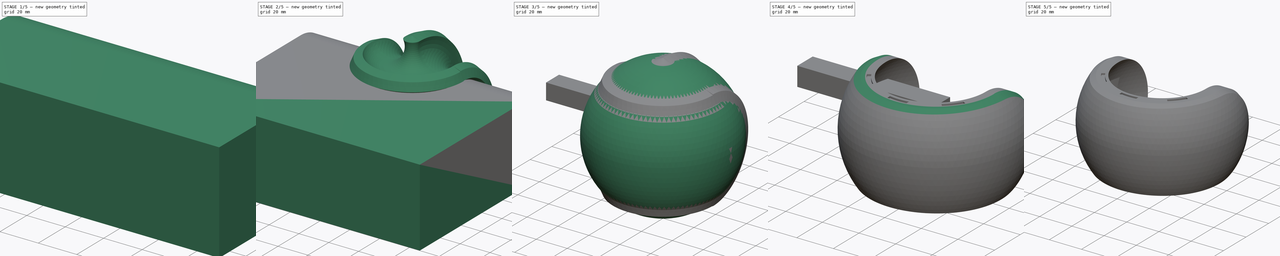
[diagram: build sequence overview — one tinted view per stage of 5, left to right]
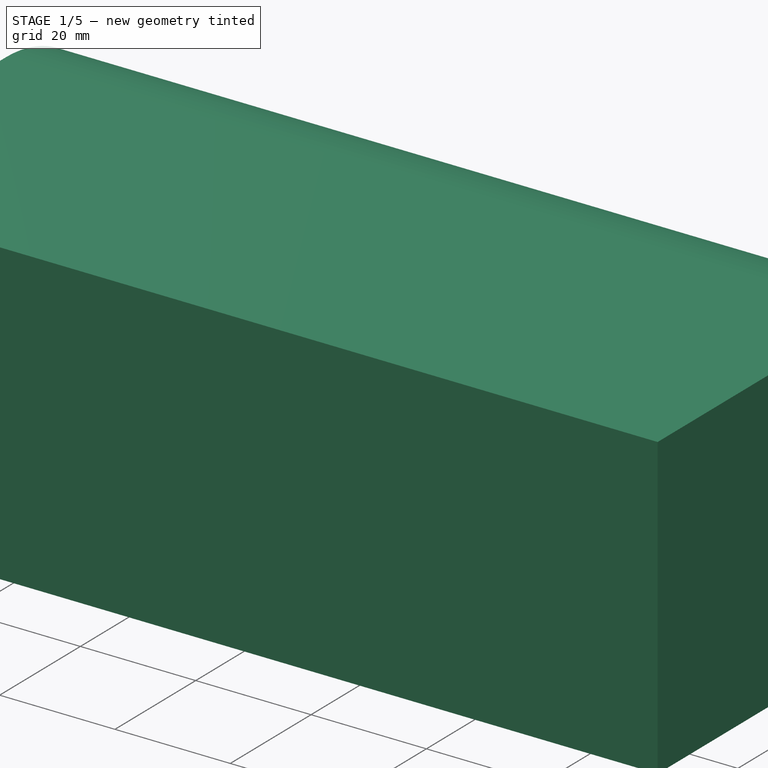
[diagram: stage 1 of 5 — iso view after this stage's code; geometry added in this stage tinted green]
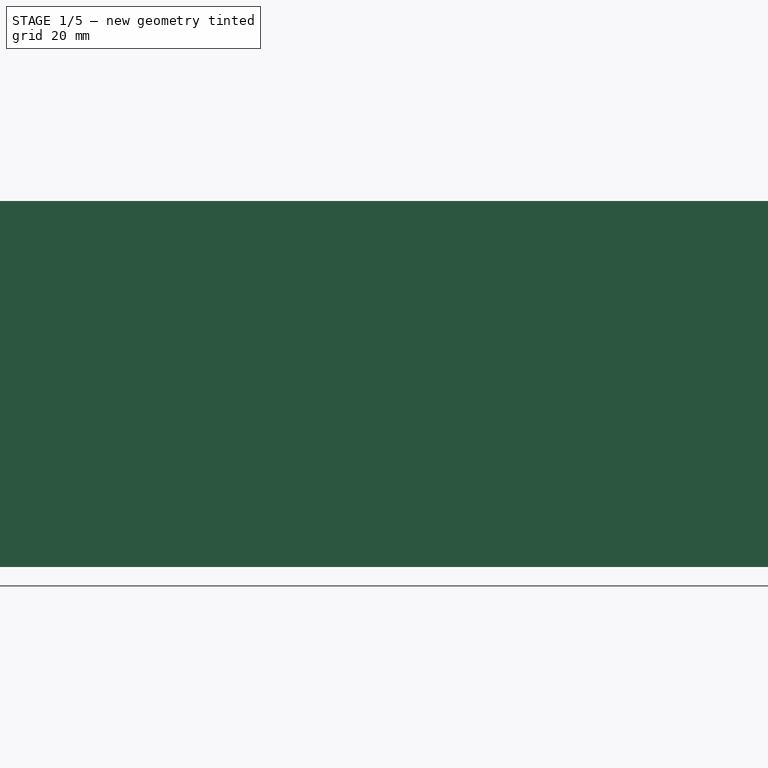
[diagram: stage 1 of 5 — front view after this stage's code; geometry added in this stage tinted green]
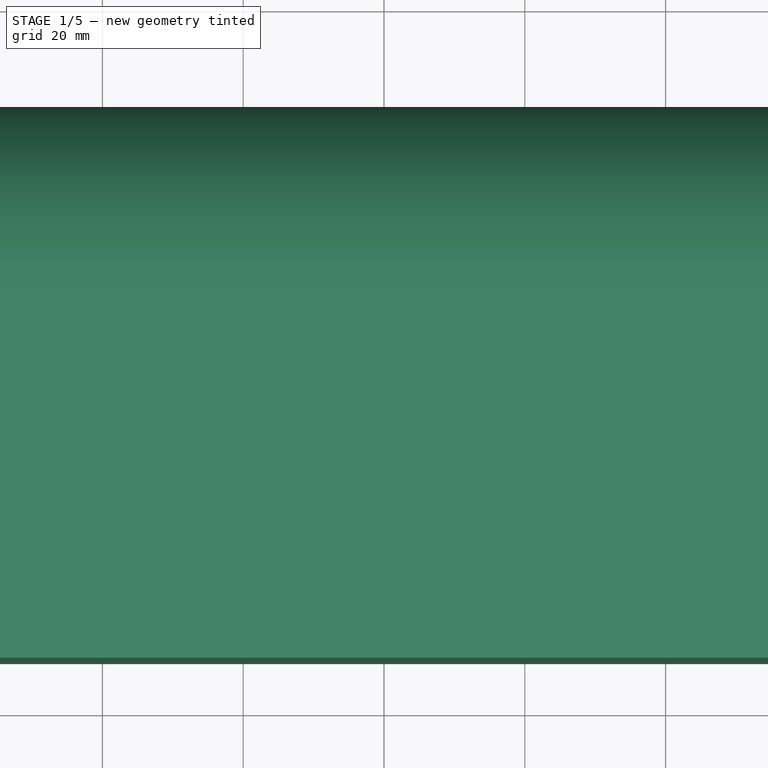
[diagram: stage 1 of 5 — top view after this stage's code; geometry added in this stage tinted green]
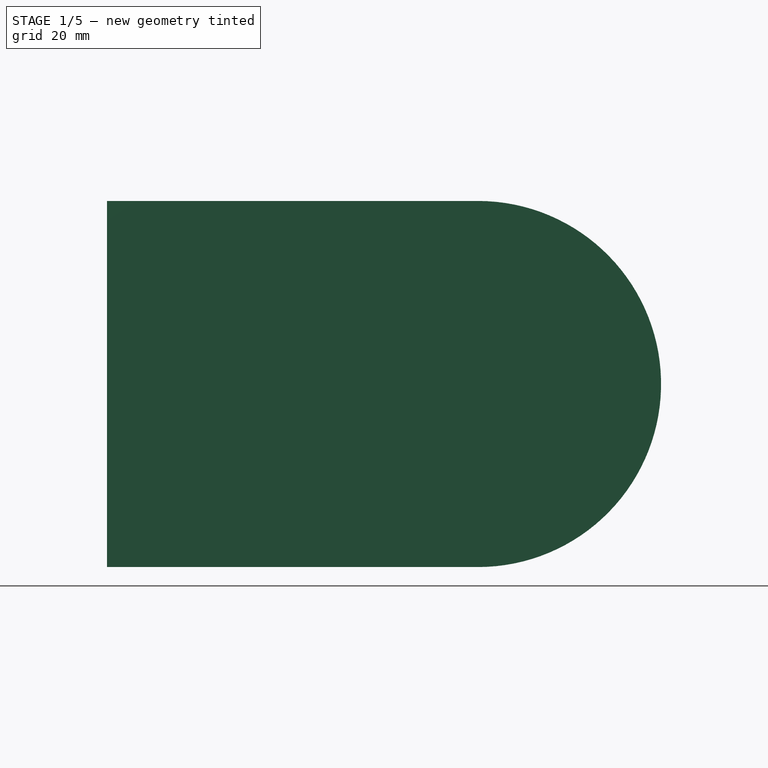
[diagram: stage 1 of 5 — right view after this stage's code; geometry added in this stage tinted green]
FCSTD DOCUMENT  (FreeCAD 0.16R6712 (Git))
Label: mouseesf2
License: All rights reserved
LicenseURL: http://en.wikipedia.org/wiki/All_rights_reserved
objects: Sketcher::SketchObject×12, PartDesign::Pad×9, Part::Cut×4, PartDesign::Revolution×3, Part::MultiFuse×3, Part::MultiCommon×1, PartDesign::Chamfer×1
note: 45 computed .brp shape members not serialized (recipe doc carries the construction recipe); baked Part::Feature solids carry a one-line shape summary decoded from their .brp

FEATURE [Sketcher::SketchObject] Sketch002
  Placement = pos=(0,0,0) rot=(0.57735,0.57735,0.57735;2.0944rad)
  sketch-geometry (4):
    g0: LineSegment StartX=-0.0102916 StartY=25.6633 StartZ=0 EndX=-52.71 EndY=25.6633 EndZ=0
    g1: LineSegment StartX=-0.0103038 StartY=-26.3367 StartZ=0 EndX=-52.71 EndY=-26.3367 EndZ=0
    g2: LineSegment StartX=-52.71 StartY=25.6633 StartZ=0 EndX=-52.71 EndY=-26.3367 EndZ=0
    g3: ArcOfCircle CenterX=-0.0103043 CenterY=-0.33667 CenterZ=0 NormalX=0 NormalY=0 NormalZ=1 Radius=26 StartAngle=4.71239 EndAngle=7.85398
  constraints (10):
    c: Horizontal(g0)
    c: Horizontal(g1)
    c: Coincident(g2,g0)
    c: Coincident(g2,g1)
    c: Vertical(g2)
    c: Coincident(g3,g0)
    c: Coincident(g3,g1)
    c: Tangent(g3,g1)
    c: Tangent(g3,g0)
    c: Radius(g3) = 26
FEATURE [PartDesign::Pad] Pad
  Length = 150
  Length2 = 100
  Midplane = true
  Placement = pos=(0,0,0) rot=(0.57735,0.57735,0.57735;2.0944rad)
  Sketch = -> Sketch002
  Type = 0
FEATURE [Sketcher::SketchObject] Sketch008
  Placement = pos=(0,0,0) rot=(0.57735,0.57735,0.57735;2.0944rad)
  sketch-geometry (4):
    g0: LineSegment StartX=0 StartY=0.5 StartZ=0 EndX=10 EndY=0.5 EndZ=0
    g1: LineSegment StartX=10 StartY=0.5 StartZ=0 EndX=10 EndY=-0.5 EndZ=0
    g2: LineSegment StartX=10 StartY=-0.5 StartZ=0 EndX=0 EndY=-0.5 EndZ=0
    g3: LineSegment StartX=0 StartY=-0.5 StartZ=0 EndX=0 EndY=0.5 EndZ=0
  constraints (12):
    c: Coincident(g0,g1)
    c: Coincident(g1,g2)
    c: Coincident(g2,g3)
    c: Coincident(g3,g0)
    c: Horizontal(g0)
    c: Horizontal(g2)
    c: Vertical(g1)
    c: Vertical(g3)
    c: DistanceY(g2,g0) = 1
    c: DistanceX(g0,g0) = 10
    c: Symmetric(g0,g1,g-1)
    c: PointOnObject(g0,g-2)
FEATURE [PartDesign::Pad] Pad005
  Length = 83
  Length2 = 100
  Midplane = true
  Placement = pos=(0,0,0) rot=(0.57735,0.57735,0.57735;2.0944rad)
  Sketch = -> Sketch008
  Type = 0
FEATURE [Sketcher::SketchObject] Sketch011
  Placement = pos=(0,0,0) rot=(0.57735,0.57735,0.57735;2.0944rad)
  sketch-geometry (4):
    g0: LineSegment StartX=-1 StartY=11.4 StartZ=0 EndX=11 EndY=11.4 EndZ=0
    g1: LineSegment StartX=11 StartY=11.4 StartZ=0 EndX=11 EndY=1 EndZ=0
    g2: LineSegment StartX=11 StartY=1 StartZ=0 EndX=-1 EndY=1 EndZ=0
    g3: LineSegment StartX=-1 StartY=1 StartZ=0 EndX=-1 EndY=11.4 EndZ=0
  constraints (12):
    c: Coincident(g0,g1)
    c: Coincident(g1,g2)
    c: Coincident(g2,g3)
    c: Coincident(g3,g0)
    c: Horizontal(g0)
    c: Horizontal(g2)
    c: Vertical(g1)
    c: Vertical(g3)
    c: DistanceX(g0,g0) = 12
    c: DistanceY(g1,g1) = 10.4
    c: DistanceY(g-1,g1) = 1
    c: DistanceX(g0,g-1) = 1
FEATURE [PartDesign::Pad] Pad007
  Length = 75
  Length2 = 100
  Placement = pos=(0,0,0) rot=(0.57735,0.57735,0.57735;2.0944rad)
  Reversed = true
  Sketch = -> Sketch011
  Type = 0
FEATURE [Sketcher::SketchObject] Sketch012
  sketch-geometry (8):
    g0: LineSegment StartX=-16.9661 StartY=13.8429 StartZ=0 EndX=17.0339 EndY=13.8429 EndZ=0
    g1: LineSegment StartX=17.0339 StartY=13.8429 StartZ=0 EndX=17.0339 EndY=-5.15711 EndZ=0
    g2: LineSegment StartX=17.0339 StartY=-5.15711 StartZ=0 EndX=-16.9661 EndY=-5.15711 EndZ=0
    g3: LineSegment StartX=-16.9661 StartY=-5.15711 StartZ=0 EndX=-16.9661 EndY=13.8429 EndZ=0
    g4: LineSegment StartX=-11.2366 StartY=-10.6546 StartZ=0 EndX=9.76342 EndY=-10.6546 EndZ=0
    g5: LineSegment StartX=9.76342 StartY=-10.6546 StartZ=0 EndX=9.76342 EndY=-28.6546 EndZ=0
    g6: LineSegment StartX=9.76342 StartY=-28.6546 StartZ=0 EndX=-11.2366 EndY=-28.6546 EndZ=0
    g7: LineSegment StartX=-11.2366 StartY=-28.6546 StartZ=0 EndX=-11.2366 EndY=-10.6546 EndZ=0
  constraints (20):
    c: Coincident(g0,g1)
    c: Coincident(g1,g2)
    c: Coincident(g2,g3)
    c: Coincident(g3,g0)
    c: Horizontal(g0)
    c: Horizontal(g2)
    c: Vertical(g1)
    c: Vertical(g3)
    c: DistanceX(g2,g2) = 34
    c: DistanceY(g3,g3) = 19
    c: Coincident(g4,g5)
    c: Coincident(g5,g6)
    c: Coincident(g6,g7)
    c: Coincident(g7,g4)
    c: Horizontal(g4)
    c: Horizontal(g6)
    c: Vertical(g5)
    c: Vertical(g7)
    c: DistanceX(g4,g4) = 21
    c: DistanceY(g5,g5) = 18
FEATURE [PartDesign::Pad] Pad008
  Length = 2
  Length2 = 100
  Midplane = true
  Sketch = -> Sketch012
  Type = 0
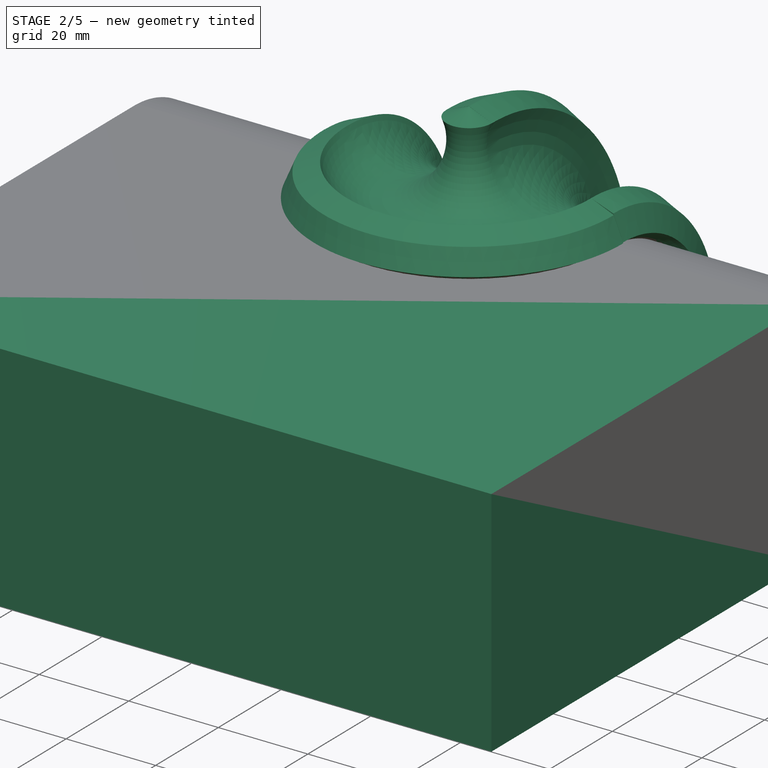
[diagram: stage 2 of 5 — iso view after this stage's code; geometry added in this stage tinted green]
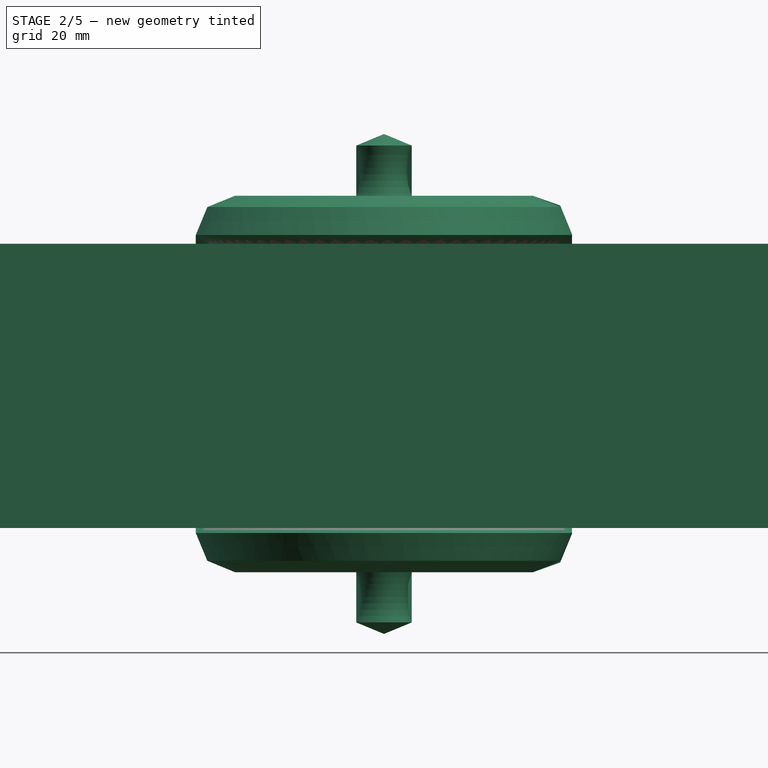
[diagram: stage 2 of 5 — front view after this stage's code; geometry added in this stage tinted green]
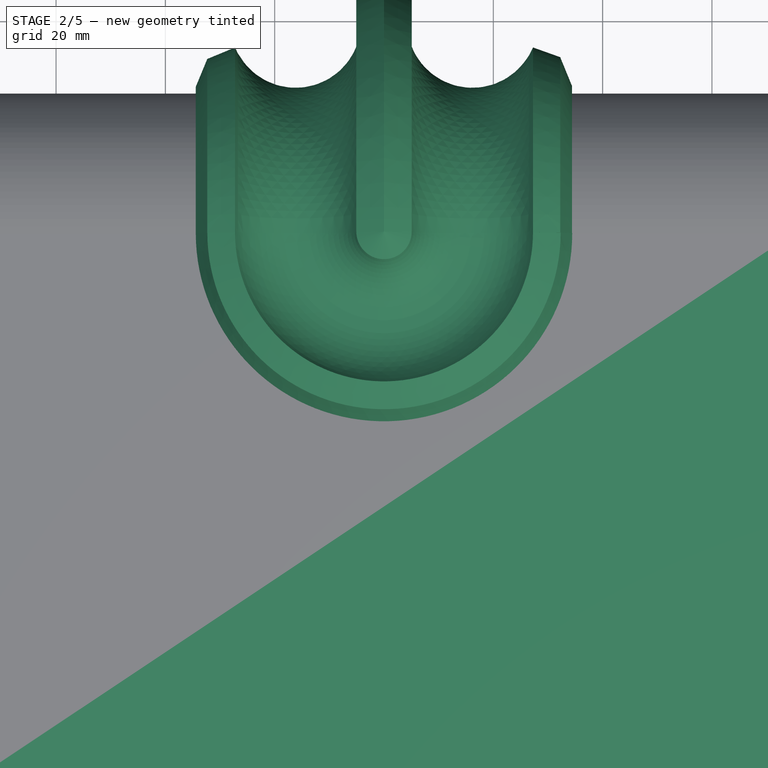
[diagram: stage 2 of 5 — top view after this stage's code; geometry added in this stage tinted green]
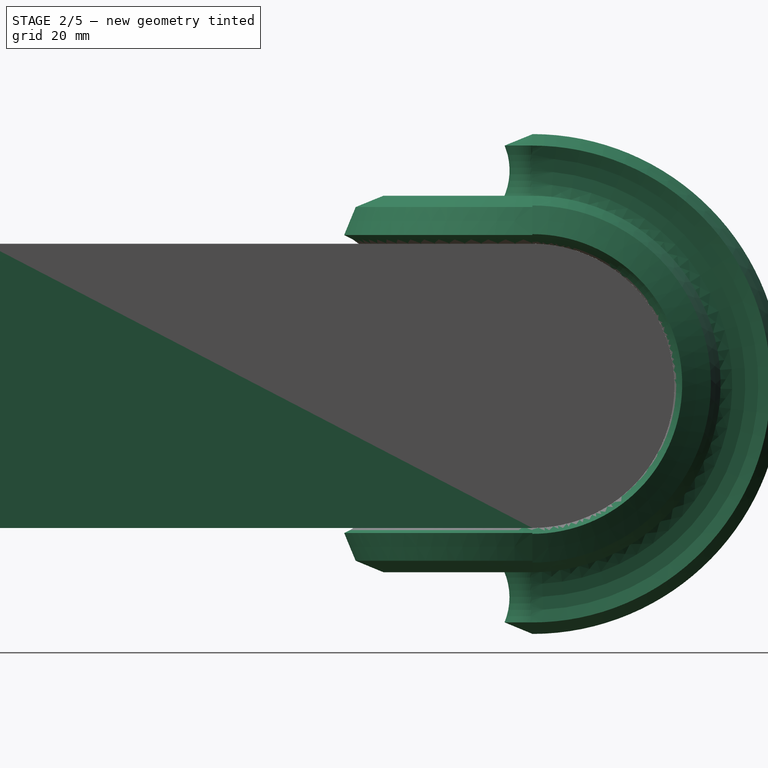
[diagram: stage 2 of 5 — right view after this stage's code; geometry added in this stage tinted green]
FEATURE [Sketcher::SketchObject] Sketch004
  Placement = pos=(0,0,0) rot=(1,0,0;1.5708rad)
  sketch-geometry (13):
    g0: LineSegment StartX=-45.7299 StartY=-9.97052e-05 StartZ=0 EndX=-43.625 EndY=-5.08134 EndZ=0
    g1: LineSegment StartX=-32.3357 StartY=-32.3328 StartZ=0 EndX=-27.2478 EndY=-34.4379 EndZ=0
    g2: ArcOfCircle CenterX=-39.0327 CenterY=16.1679 CenterZ=0 NormalX=0 NormalY=0 NormalZ=1 Radius=12 StartAngle=4.31969 EndAngle=7.46128
    g3: ArcOfCircle CenterX=-39.0328 CenterY=-16.1678 CenterZ=0 NormalX=0 NormalY=0 NormalZ=1 Radius=11.9999 StartAngle=5.10517 EndAngle=8.24668
    g4: ArcOfCircle CenterX=-16.1726 CenterY=-39.0323 CenterZ=0 NormalX=0 NormalY=0 NormalZ=1 Radius=11.9903 StartAngle=5.89182 EndAngle=9.03154
    g5: LineSegment StartX=0 StartY=45.6969 StartZ=0 EndX=-5.06214 EndY=43.6285 EndZ=0
    g6: LineSegment StartX=-32.3229 StartY=32.3788 StartZ=0 EndX=-27.2599 EndY=34.4451 EndZ=0
    g7: LineSegment StartX=-34.4405 StartY=27.2544 StartZ=0 EndX=-32.3229 EndY=32.3788 EndZ=0
    g8: LineSegment StartX=-43.6249 StartY=5.08134 StartZ=0 EndX=-45.7299 EndY=-9.97052e-05 EndZ=0
    g9: LineSegment StartX=-34.4397 StartY=-27.2539 StartZ=0 EndX=-32.3357 EndY=-32.3328 EndZ=0
    g10: LineSegment StartX=-5.0889 StartY=-43.6061 StartZ=0 EndX=0 EndY=-45.7116 EndZ=0
    g11: LineSegment StartX=0 StartY=45.6969 StartZ=0 EndX=0 EndY=-45.7116 EndZ=0
    g12: ArcOfCircle CenterX=-16.1811 CenterY=39.0854 CenterZ=0 NormalX=0 NormalY=0 NormalZ=1 Radius=12.0113 StartAngle=3.53823 EndAngle=6.67108
  constraints (24):
    c: Coincident(g7,g2)
    c: Coincident(g7,g6)
    c: Coincident(g8,g2)
    c: Coincident(g8,g0)
    c: PointOnObject(g0,g3)
    c: PointOnObject(g9,g3)
    c: Tangent(g0,g9)
    c: PointOnObject(g1,g4)
    c: PointOnObject(g10,g4)
    c: Tangent(g1,g10)
    c: Coincident(g0,g3)
    c: Coincident(g3,g9)
    c: Coincident(g1,g9)
    c: Coincident(g1,g4)
    c: Coincident(g4,g10)
    c: Coincident(g11,g5)
    c: Coincident(g11,g10)
    c: Vertical(g11)
    c: Coincident(g12,g6)
    c: Coincident(g12,g5)
    c: Equal(g6,g5)
    c: Radius(g2) = 12
    c: PointOnObject(g5,g-2)
    c: Perpendicular(g12,g5)
FEATURE [Sketcher::SketchObject] Sketch001
  Placement = pos=(0,0,0) rot=(0.57735,0.57735,-0.57735;2.0944rad)
  sketch-geometry (13):
    g0: LineSegment StartX=-45.7299 StartY=-9.97052e-05 StartZ=0 EndX=-43.625 EndY=-5.08134 EndZ=0
    g1: LineSegment StartX=-32.3357 StartY=-32.3328 StartZ=0 EndX=-27.2478 EndY=-34.4379 EndZ=0
    g2: ArcOfCircle CenterX=-39.0327 CenterY=16.1679 CenterZ=0 NormalX=0 NormalY=0 NormalZ=1 Radius=12 StartAngle=4.31969 EndAngle=7.46128
    g3: ArcOfCircle CenterX=-39.0328 CenterY=-16.1678 CenterZ=0 NormalX=0 NormalY=0 NormalZ=1 Radius=11.9999 StartAngle=5.10517 EndAngle=8.24668
    g4: ArcOfCircle CenterX=-16.1726 CenterY=-39.0323 CenterZ=0 NormalX=0 NormalY=0 NormalZ=1 Radius=11.9903 StartAngle=5.89182 EndAngle=9.03154
    g5: LineSegment StartX=0 StartY=45.7139 StartZ=0 EndX=-5.28125 EndY=43.6461 EndZ=0
    g6: LineSegment StartX=-32.6654 StartY=32.2385 StartZ=0 EndX=-27.4173 EndY=34.389 EndZ=0
    g7: LineSegment StartX=-34.4405 StartY=27.2544 StartZ=0 EndX=-32.6654 EndY=32.2385 EndZ=0
    g8: LineSegment StartX=-43.6249 StartY=5.08134 StartZ=0 EndX=-45.7299 EndY=-9.97052e-05 EndZ=0
    g9: LineSegment StartX=-34.4397 StartY=-27.2539 StartZ=0 EndX=-32.3357 EndY=-32.3328 EndZ=0
    g10: LineSegment StartX=-5.0889 StartY=-43.6061 StartZ=0 EndX=0 EndY=-45.7116 EndZ=0
    g11: LineSegment StartX=0 StartY=45.7139 StartZ=0 EndX=0 EndY=-45.7116 EndZ=0
    g12: ArcOfCircle CenterX=-16.4553 CenterY=39.2712 CenterZ=0 NormalX=0 NormalY=0 NormalZ=1 Radius=12 StartAngle=3.56059 EndAngle=6.65637
  constraints (25):
    c: Coincident(g7,g2)
    c: Coincident(g7,g6)
    c: Coincident(g8,g2)
    c: Coincident(g8,g0)
    c: PointOnObject(g0,g3)
    c: PointOnObject(g9,g3)
    c: Tangent(g0,g9)
    c: PointOnObject(g1,g4)
    c: PointOnObject(g10,g4)
    c: Tangent(g1,g10)
    c: Coincident(g0,g3)
    c: Coincident(g3,g9)
    c: Coincident(g1,g9)
    c: Coincident(g1,g4)
    c: Coincident(g4,g10)
    c: Coincident(g11,g5)
    c: Coincident(g11,g10)
    c: Vertical(g11)
    c: Coincident(g12,g6)
    c: Coincident(g12,g5)
    c: Equal(g6,g5)
    c: Radius(g12) = 12
    c: Radius(g2) = 12
    c: PointOnObject(g5,g-2)
    c: Perpendicular(g12,g5)
FEATURE [PartDesign::Revolution] Revolution001
  Angle = 180
  Axis = (1,0,0)
  Base = (0,0,0)
  Placement = pos=(0,0,0) rot=(0.57735,0.57735,-0.57735;2.0944rad)
  ReferenceAxis = -> Sketch001 [V_Axis]
  Reversed = true
  Sketch = -> Sketch001
FEATURE [Sketcher::SketchObject] Sketch005
  Placement = pos=(0,0,0) rot=(0.57735,0.57735,0.57735;2.0944rad)
  sketch-geometry (4):
    g0: LineSegment StartX=-0.0102979 StartY=25.6633 StartZ=0 EndX=-100 EndY=25.6633 EndZ=0
    g1: LineSegment StartX=-0.0103041 StartY=-26.3367 StartZ=0 EndX=-100 EndY=-26.3367 EndZ=0
    g2: LineSegment StartX=-100 StartY=25.6633 StartZ=0 EndX=-100 EndY=-26.3367 EndZ=0
    g3: ArcOfCircle CenterX=-0.0103043 CenterY=-0.33667 CenterZ=0 NormalX=0 NormalY=0 NormalZ=1 Radius=26 StartAngle=4.71239 EndAngle=7.85398
  constraints (11):
    c: Horizontal(g0)
    c: Horizontal(g1)
    c: Coincident(g2,g0)
    c: Coincident(g2,g1)
    c: Vertical(g2)
    c: Coincident(g3,g0)
    c: Coincident(g3,g1)
    c: Tangent(g3,g1)
    c: Tangent(g3,g0)
    c: Radius(g3) = 26
    c: DistanceX(g0,g-1) = 100
FEATURE [PartDesign::Pad] Pad002
  Length = 150
  Length2 = 100
  Midplane = true
  Placement = pos=(0,0,0) rot=(0.57735,0.57735,0.57735;2.0944rad)
  Sketch = -> Sketch005
  Type = 0
FEATURE [PartDesign::Revolution] Revolution002
  Angle = 180
  Axis = (0,0,1)
  Base = (0,0,0)
  Placement = pos=(0,0,0) rot=(1,0,0;1.5708rad)
  ReferenceAxis = -> Sketch004 [V_Axis]
  Sketch = -> Sketch004
FEATURE [Part::Cut] Cut001
  Base = -> Revolution001
  Tool = -> Pad
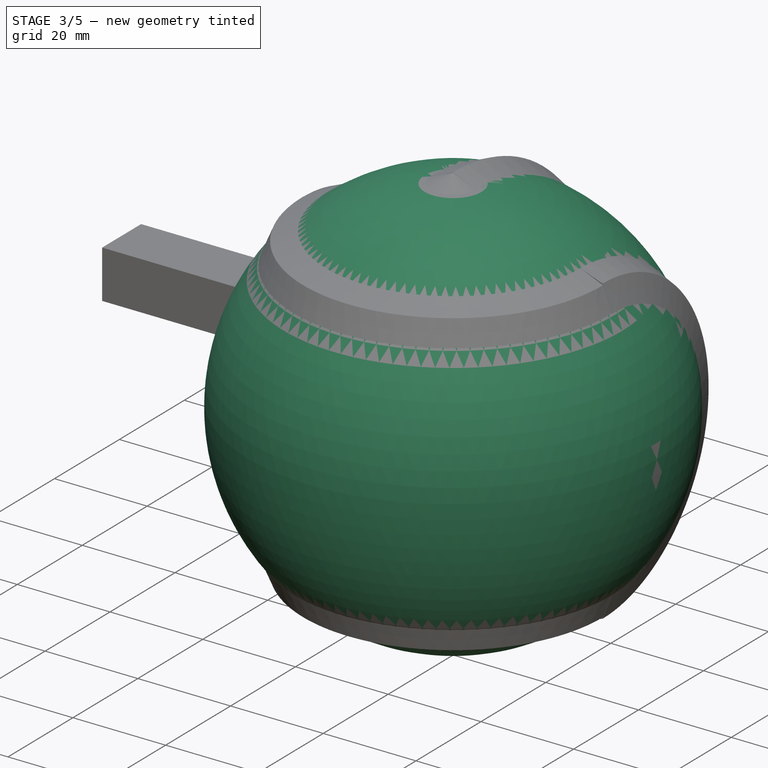
[diagram: stage 3 of 5 — iso view after this stage's code; geometry added in this stage tinted green]
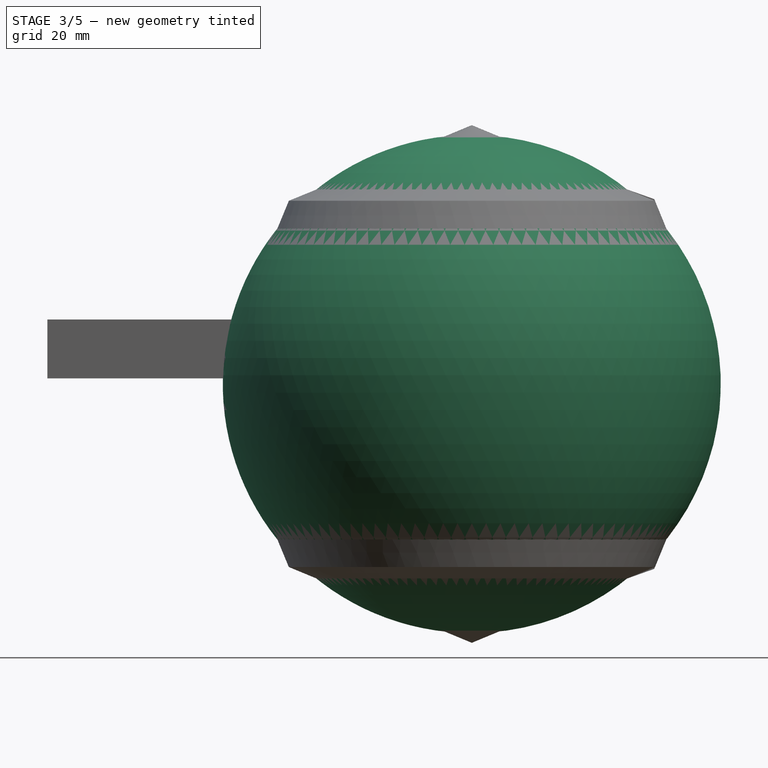
[diagram: stage 3 of 5 — front view after this stage's code; geometry added in this stage tinted green]
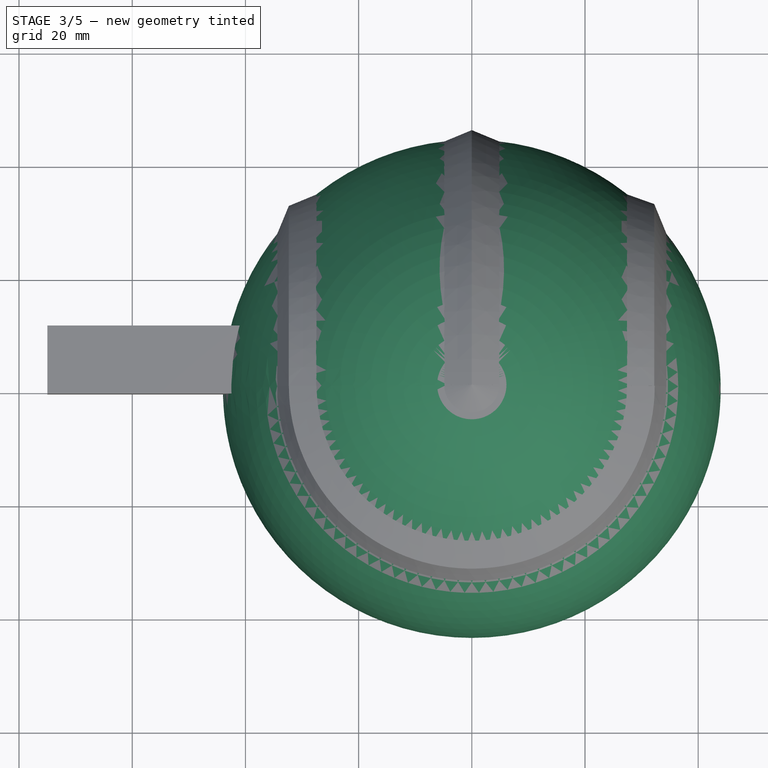
[diagram: stage 3 of 5 — top view after this stage's code; geometry added in this stage tinted green]
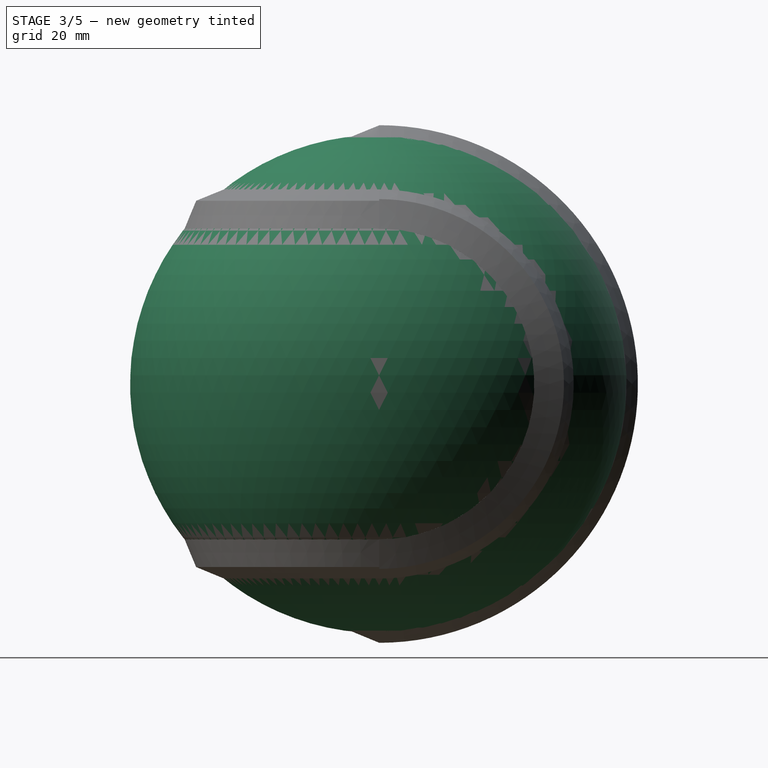
[diagram: stage 3 of 5 — right view after this stage's code; geometry added in this stage tinted green]
FEATURE [Sketcher::SketchObject] Sketch
  Placement = pos=(0,0,0) rot=(1,0,0;1.5708rad)
  sketch-geometry (4):
    g0: ArcOfCircle CenterX=0 CenterY=0 CenterZ=0 NormalX=0 NormalY=0 NormalZ=1 Radius=37.5 StartAngle=1.5708 EndAngle=4.71239
    g1: ArcOfCircle CenterX=0 CenterY=0 CenterZ=0 NormalX=0 NormalY=0 NormalZ=1 Radius=44 StartAngle=1.5708 EndAngle=4.71239
    g2: LineSegment StartX=-5.33576e-06 StartY=37.5 StartZ=0 EndX=-5.33576e-06 EndY=44 EndZ=0
    g3: LineSegment StartX=0 StartY=-37.5 StartZ=0 EndX=0 EndY=-44 EndZ=0
  constraints (11):
    c: Coincident(g0,g-1)
    c: Coincident(g1,g-1)
    c: Radius(g1) = 44
    c: Coincident(g2,g0)
    c: Vertical(g2)
    c: Coincident(g3,g0)
    c: Vertical(g3)
    c: Coincident(g1,g2)
    c: Coincident(g1,g3)
    c: Radius(g0) = 37.5
    c: PointOnObject(g0,g-2)
FEATURE [PartDesign::Revolution] Revolution
  Angle = 360
  Axis = (0,0,1)
  Base = (0,0,0)
  Placement = pos=(0,0,0) rot=(1,0,0;1.5708rad)
  ReferenceAxis = -> Sketch [V_Axis]
  Sketch = -> Sketch
FEATURE [Part::Cut] Cut
  Base = -> Revolution002
  Tool = -> Pad002
FEATURE [Part::MultiFuse] Fusion
  Shapes = -> [Cut001,Cut]
FEATURE [Sketcher::SketchObject] Sketch006
  Placement = pos=(0,0,25.6633) rot=(1,0,0;3.14159rad)
  Support = -> Fusion [Face43]
  sketch-geometry (12):
    g0: ArcOfCircle CenterX=0 CenterY=0 CenterZ=0 NormalX=0 NormalY=0 NormalZ=1 Radius=29 StartAngle=2.27316 EndAngle=2.62545
    g1: ArcOfCircle CenterX=0 CenterY=0 CenterZ=0 NormalX=0 NormalY=0 NormalZ=1 Radius=31 StartAngle=2.27017 EndAngle=2.62166
    g2: LineSegment StartX=-26.9035 StartY=15.4014 StartZ=0 EndX=-25.2221 EndY=14.3124 EndZ=0
    g3: LineSegment StartX=-19.956 StartY=23.7225 StartZ=0 EndX=-18.7348 EndY=22.1361 EndZ=0
    g4: LineSegment StartX=-5.11284 StartY=30.5755 StartZ=0 EndX=-5.11284 EndY=28.5457 EndZ=0
    g5: LineSegment StartX=26.8629 StartY=15.4721 StartZ=0 EndX=25.0785 EndY=14.5626 EndZ=0
    g6: LineSegment StartX=19.8925 StartY=23.7758 StartZ=0 EndX=18.5975 EndY=22.2516 EndZ=0
    g7: LineSegment StartX=5.2116 StartY=30.5588 StartZ=0 EndX=5.2116 EndY=28.5279 EndZ=0
    g8: ArcOfCircle CenterX=0 CenterY=0 CenterZ=0 NormalX=0 NormalY=0 NormalZ=1 Radius=31 StartAngle=1.40188 EndAngle=1.73648
    g9: ArcOfCircle CenterX=0 CenterY=0 CenterZ=0 NormalX=0 NormalY=0 NormalZ=1 Radius=29 StartAngle=1.3901 EndAngle=1.74803
    g10: ArcOfCircle CenterX=0 CenterY=0 CenterZ=0 NormalX=0 NormalY=0 NormalZ=1 Radius=29 StartAngle=0.526092 EndAngle=0.874616
    g11: ArcOfCircle CenterX=0 CenterY=0 CenterZ=0 NormalX=0 NormalY=0 NormalZ=1 Radius=31 StartAngle=0.52256 EndAngle=0.874092
  constraints (26):
    c: Coincident(g0,g-1)
    c: Coincident(g1,g-1)
    c: Radius(g1) = 31
    c: Radius(g0) = 29
    c: Vertical(g7)
    c: Vertical(g4)
    c: Coincident(g1,g3)
    c: Coincident(g8,g4)
    c: Coincident(g0,g3)
    c: Coincident(g9,g4)
    c: Equal(g1,g8)
    c: Coincident(g11,g6)
    c: Coincident(g8,g7)
    c: Coincident(g1,g8)
    c: Equal(g0,g9)
    c: Coincident(g10,g6)
    c: Coincident(g9,g7)
    c: Coincident(g0,g9)
    c: Equal(g0,g10)
    c: Coincident(g0,g2)
    c: Coincident(g10,g5)
    c: Coincident(g0,g10)
    c: Equal(g1,g11)
    c: Coincident(g1,g2)
    c: Coincident(g11,g5)
    c: Coincident(g1,g11)
FEATURE [PartDesign::Pad] Pad003
  Length = 1
  Length2 = 100
  Sketch = -> Sketch006
  Type = 0
FEATURE [Sketcher::SketchObject] Sketch007
  Placement = pos=(0,0,-26.3367) rot=(0,0,1;0rad)
  Support = -> Pad003 [Face39]
  sketch-geometry (12):
    g0: ArcOfCircle CenterX=0 CenterY=0 CenterZ=0 NormalX=0 NormalY=0 NormalZ=1 Radius=29.1198 StartAngle=3.65801 EndAngle=4.01755
    g1: ArcOfCircle CenterX=0 CenterY=0 CenterZ=0 NormalX=0 NormalY=0 NormalZ=1 Radius=30.7827 StartAngle=3.65422 EndAngle=4.01778
    g2: LineSegment StartX=-5.21595 StartY=-28.6489 StartZ=0 EndX=-5.21595 EndY=-30.3376 EndZ=0
    g3: LineSegment StartX=5.33457 StartY=-28.627 StartZ=0 EndX=5.33457 EndY=-30.317 EndZ=0
    g4: LineSegment StartX=18.4171 StartY=-22.556 StartZ=0 EndX=19.644 EndY=-23.7 EndZ=0
    g5: LineSegment StartX=25.1678 StartY=-14.6473 StartZ=0 EndX=26.7097 EndY=-15.3026 EndZ=0
    g6: LineSegment StartX=-18.6443 StartY=-22.3686 StartZ=0 EndX=-19.7035 EndY=-23.6506 EndZ=0
    g7: LineSegment StartX=-25.3223 StartY=-14.3785 StartZ=0 EndX=-26.8259 EndY=-15.098 EndZ=0
    g8: ArcOfCircle CenterX=0 CenterY=0 CenterZ=0 NormalX=0 NormalY=0 NormalZ=1 Radius=29.1198 StartAngle=4.5323 EndAngle=4.89662
    g9: ArcOfCircle CenterX=0 CenterY=0 CenterZ=0 NormalX=0 NormalY=0 NormalZ=1 Radius=30.7827 StartAngle=4.54212 EndAngle=4.88657
    g10: ArcOfCircle CenterX=0 CenterY=0 CenterZ=0 NormalX=0 NormalY=0 NormalZ=1 Radius=29.1198 StartAngle=5.39711 EndAngle=5.75612
    g11: ArcOfCircle CenterX=0 CenterY=0 CenterZ=0 NormalX=0 NormalY=0 NormalZ=1 Radius=30.7827 StartAngle=5.40448 EndAngle=5.76291
  constraints (28):
    c: Coincident(g0,g-1)
    c: Coincident(g1,g-1)
    c: Vertical(g2)
    c: PointOnObject(g3,g0)
    c: PointOnObject(g3,g1)
    c: Vertical(g3)
    c: PointOnObject(g4,g0)
    c: PointOnObject(g4,g1)
    c: Coincident(g1,g7)
    c: Coincident(g11,g5)
    c: Coincident(g0,g7)
    c: Coincident(g10,g5)
    c: Equal(g0,g8)
    c: Coincident(g0,g6)
    c: Coincident(g8,g2)
    c: Coincident(g0,g8)
    c: Equal(g1,g9)
    c: Coincident(g1,g6)
    c: Coincident(g9,g2)
    c: Coincident(g1,g9)
    c: Equal(g8,g10)
    c: PointOnObject(g8,g3)
    c: PointOnObject(g10,g4)
    c: Coincident(g8,g10)
    c: Equal(g9,g11)
    c: PointOnObject(g9,g3)
    c: PointOnObject(g11,g4)
    c: Coincident(g9,g11)
FEATURE [PartDesign::Pad] Pad004
  Length = 1
  Length2 = 100
  Sketch = -> Sketch007
  Type = 0
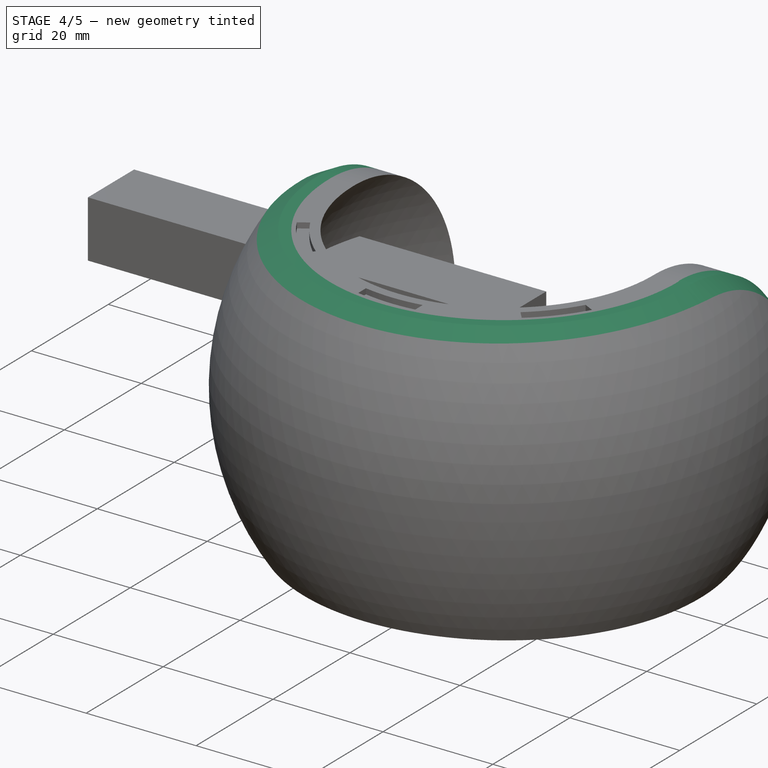
[diagram: stage 4 of 5 — iso view after this stage's code; geometry added in this stage tinted green]
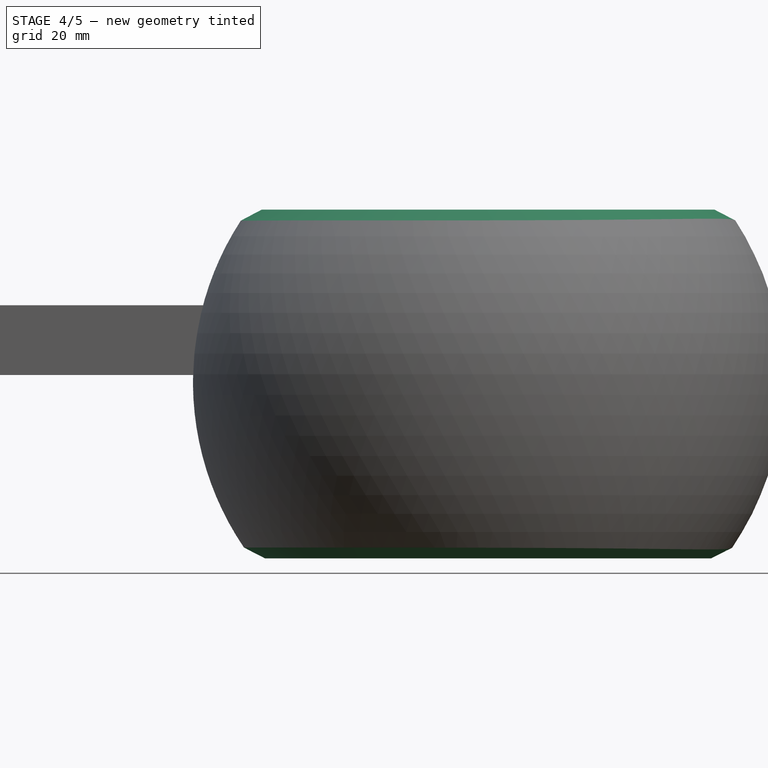
[diagram: stage 4 of 5 — front view after this stage's code; geometry added in this stage tinted green]
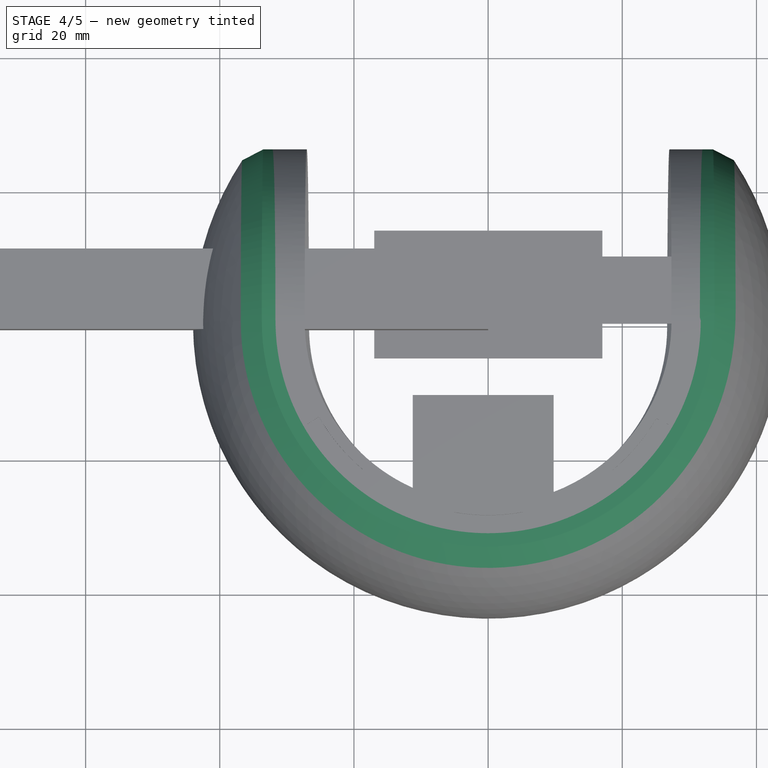
[diagram: stage 4 of 5 — top view after this stage's code; geometry added in this stage tinted green]
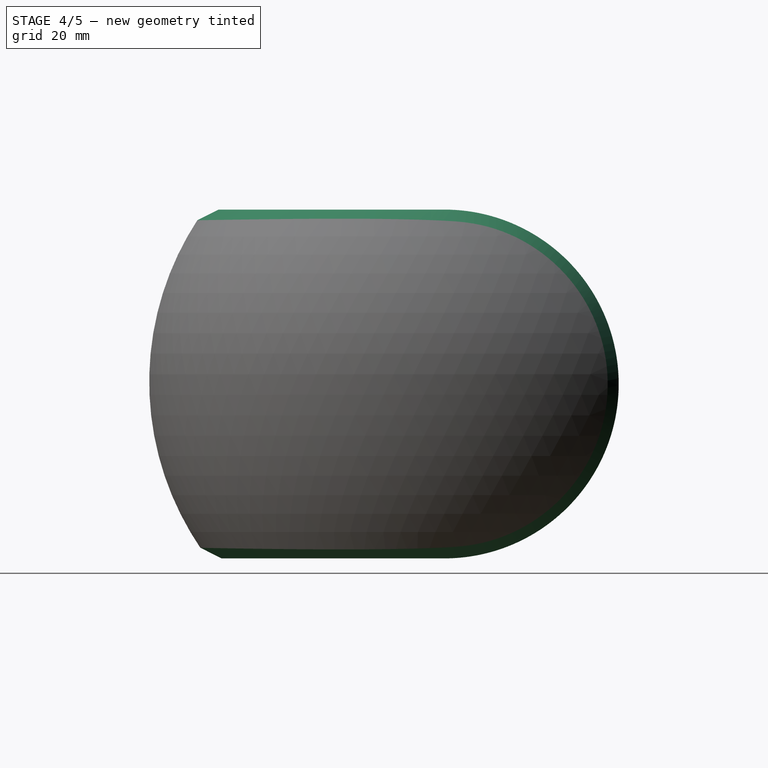
[diagram: stage 4 of 5 — right view after this stage's code; geometry added in this stage tinted green]
FEATURE [Sketcher::SketchObject] Sketch003
  Placement = pos=(0,0,0) rot=(0.57735,0.57735,0.57735;2.0944rad)
  sketch-geometry (4):
    g0: LineSegment StartX=-0.0102979 StartY=25.6633 StartZ=0 EndX=-100 EndY=25.6633 EndZ=0
    g1: LineSegment StartX=-0.0103041 StartY=-26.3367 StartZ=0 EndX=-100 EndY=-26.3367 EndZ=0
    g2: LineSegment StartX=-100 StartY=25.6633 StartZ=0 EndX=-100 EndY=-26.3367 EndZ=0
    g3: ArcOfCircle CenterX=-0.0103043 CenterY=-0.33667 CenterZ=0 NormalX=0 NormalY=0 NormalZ=1 Radius=26 StartAngle=4.71239 EndAngle=7.85398
  constraints (11):
    c: Horizontal(g0)
    c: Horizontal(g1)
    c: Coincident(g2,g0)
    c: Coincident(g2,g1)
    c: Vertical(g2)
    c: Coincident(g3,g0)
    c: Coincident(g3,g1)
    c: Tangent(g3,g1)
    c: Tangent(g3,g0)
    c: Radius(g3) = 26
    c: DistanceX(g0,g-1) = 100
FEATURE [PartDesign::Pad] Pad001
  Length = 150
  Length2 = 100
  Midplane = true
  Placement = pos=(0,0,0) rot=(0.57735,0.57735,0.57735;2.0944rad)
  Sketch = -> Sketch003
  Type = 0
FEATURE [Part::MultiCommon] Common
  Shapes = -> [Pad001,Revolution]
FEATURE [Part::Cut] Cut002
  Base = -> Common
  Tool = -> Pad004
FEATURE [PartDesign::Chamfer] Chamfer
  Base = -> Cut002 [Edge1,Edge2,Edge3,Edge4,Edge6,Edge7,Edge8,Edge9,Edge10,Edge18,Edge16,Edge29,Edge30,Edge31,Edge32,Edge33,Edge15,Edge14,Edge28,Edge13]
  Size = 2
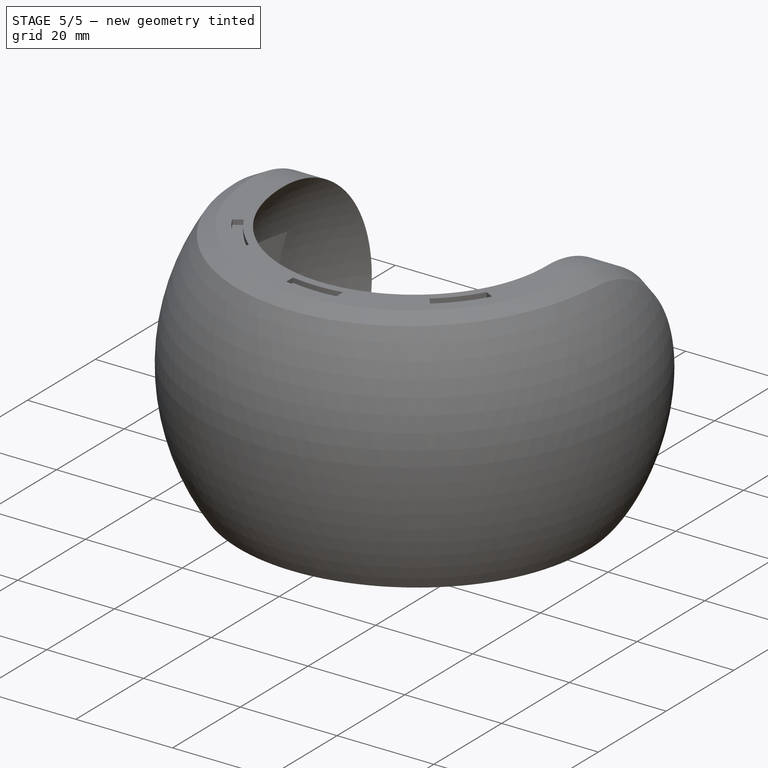
[diagram: stage 5 of 5 — iso view after this stage's code; geometry added in this stage tinted green]
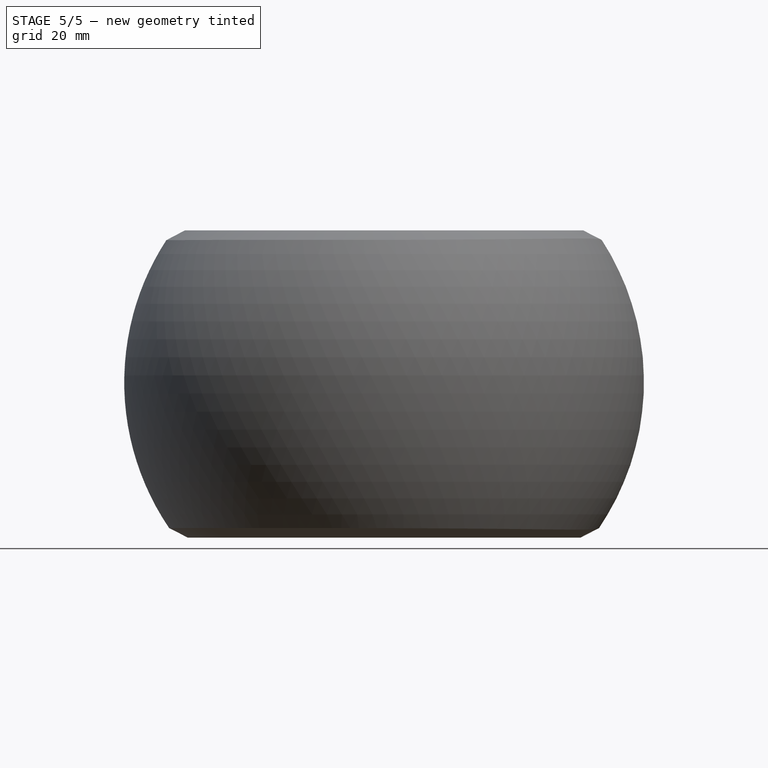
[diagram: stage 5 of 5 — front view after this stage's code; geometry added in this stage tinted green]
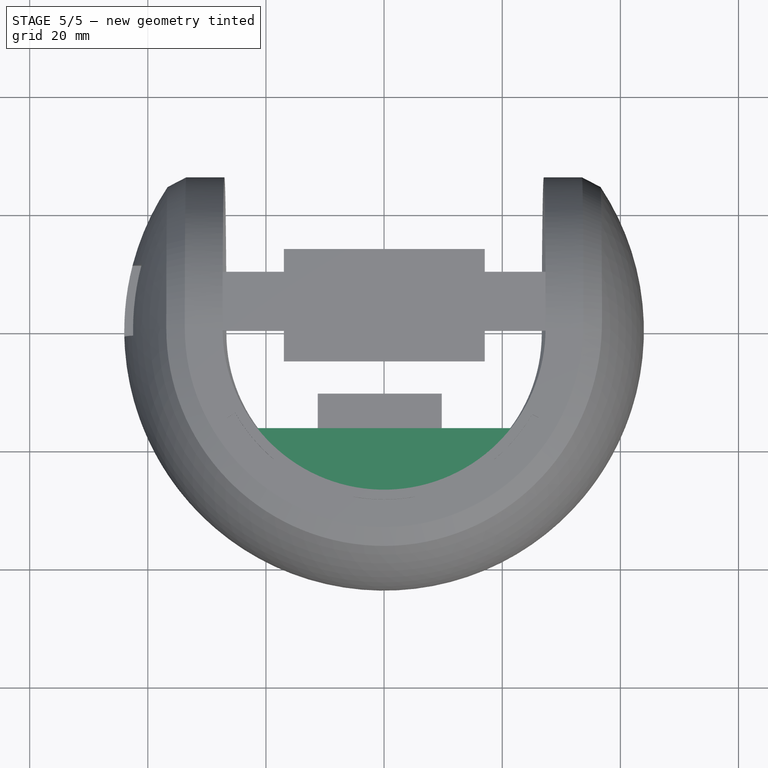
[diagram: stage 5 of 5 — top view after this stage's code; geometry added in this stage tinted green]
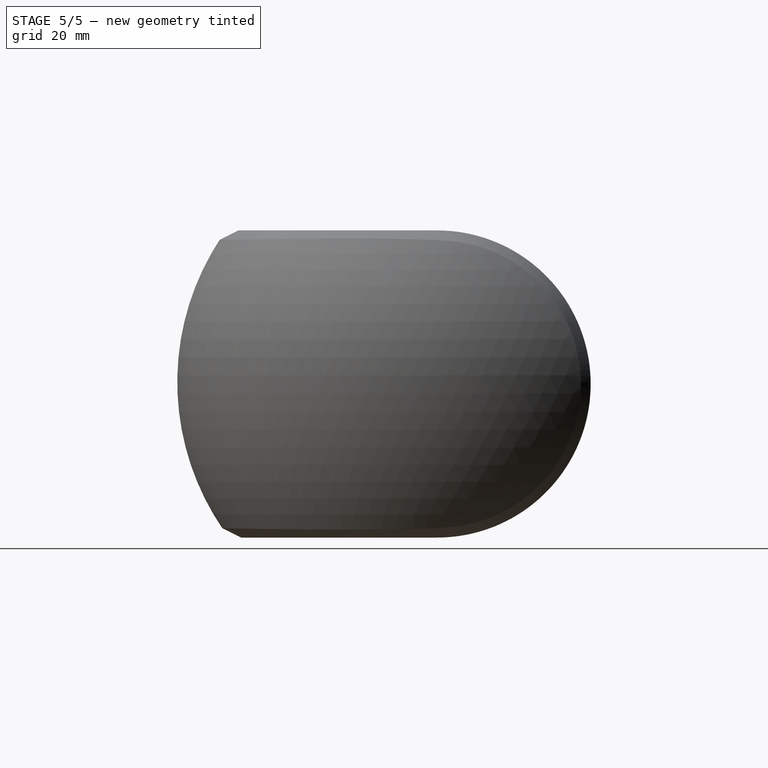
[diagram: stage 5 of 5 — right view after this stage's code; geometry added in this stage tinted green]
FEATURE [Sketcher::SketchObject] Sketch009
  Placement = pos=(0,-29,0) rot=(1,0,0;1.5708rad)
  sketch-geometry (8):
    g0: LineSegment StartX=-33 StartY=2 StartZ=0 EndX=33 EndY=2 EndZ=0
    g1: LineSegment StartX=33 StartY=2 StartZ=0 EndX=33 EndY=1 EndZ=0
    g2: LineSegment StartX=33 StartY=1 StartZ=0 EndX=-33 EndY=1 EndZ=0
    g3: LineSegment StartX=-33 StartY=1 StartZ=0 EndX=-33 EndY=2 EndZ=0
    g4: LineSegment StartX=-33 StartY=-2 StartZ=0 EndX=33 EndY=-2 EndZ=0
    g5: LineSegment StartX=33 StartY=-2 StartZ=0 EndX=33 EndY=-1 EndZ=0
    g6: LineSegment StartX=33 StartY=-1 StartZ=0 EndX=-33 EndY=-1 EndZ=0
    g7: LineSegment StartX=-33 StartY=-1 StartZ=0 EndX=-33 EndY=-2 EndZ=0
  constraints (24):
    c: Coincident(g0,g1)
    c: Coincident(g1,g2)
    c: Coincident(g2,g3)
    c: Coincident(g3,g0)
    c: Horizontal(g0)
    c: Horizontal(g2)
    c: Vertical(g1)
    c: Vertical(g3)
    c: Coincident(g4,g5)
    c: Coincident(g5,g6)
    c: Coincident(g6,g7)
    c: Coincident(g7,g4)
    c: Horizontal(g4)
    c: Horizontal(g6)
    c: Vertical(g5)
    c: Vertical(g7)
    c: Symmetric(g0,g0,g-2)
    c: Symmetric(g4,g4,g-2)
    c: Equal(g0,g4)
    c: Equal(g1,g5)
    c: DistanceY(g1,g1) = 1
    c: DistanceY(g4,g1) = 3
    c: DistanceX(g4,g-1) = 33
    c: Symmetric(g0,g4,g-1)
FEATURE [PartDesign::Pad] Pad006
  Length = 12.5
  Length2 = 100
  Placement = pos=(0,-29,0) rot=(1,0,0;1.5708rad)
  Reversed = true
  Sketch = -> Sketch009
  Type = 0
FEATURE [Part::MultiFuse] Fusion001
  Shapes = -> [Chamfer,Pad005]
FEATURE [Part::MultiFuse] Fusion002
  Shapes = -> [Pad006,Fusion001]
FEATURE [Part::Cut] Cut003
  Base = -> Fusion002
  Tool = -> Pad007
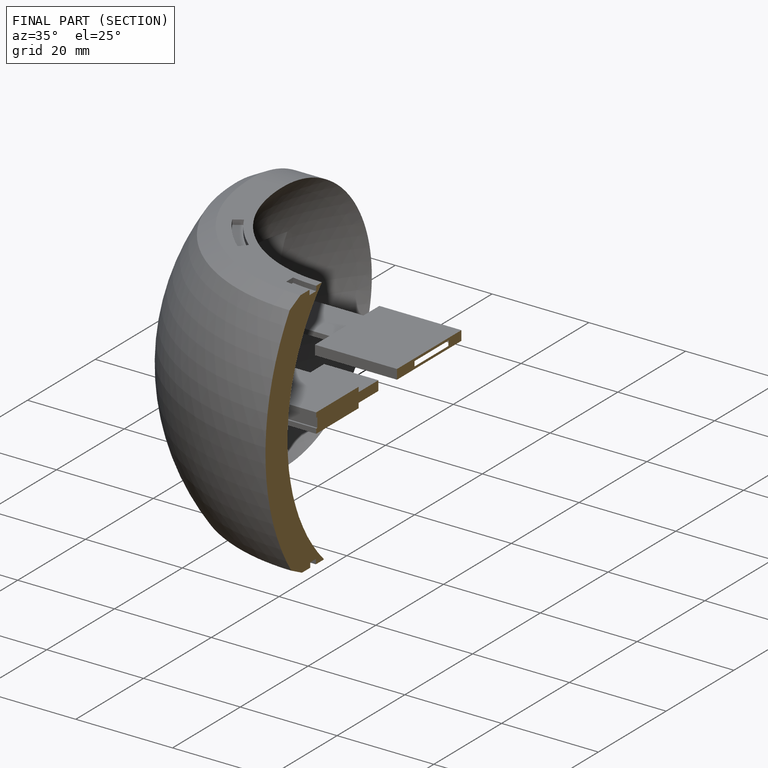
[diagram: finished part — half-section view (interior)]
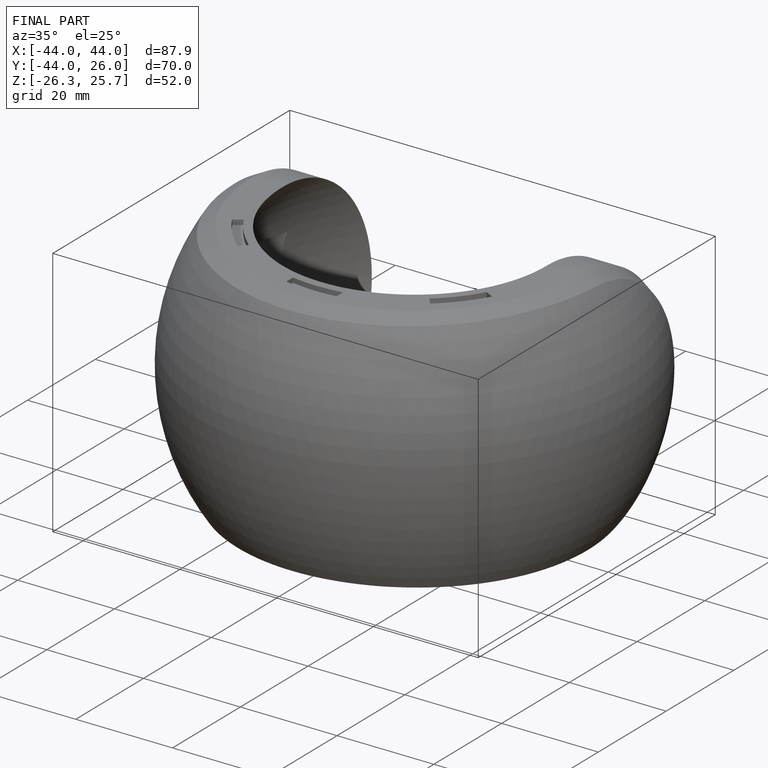
[diagram: finished part — iso view with bounding-box wireframe]
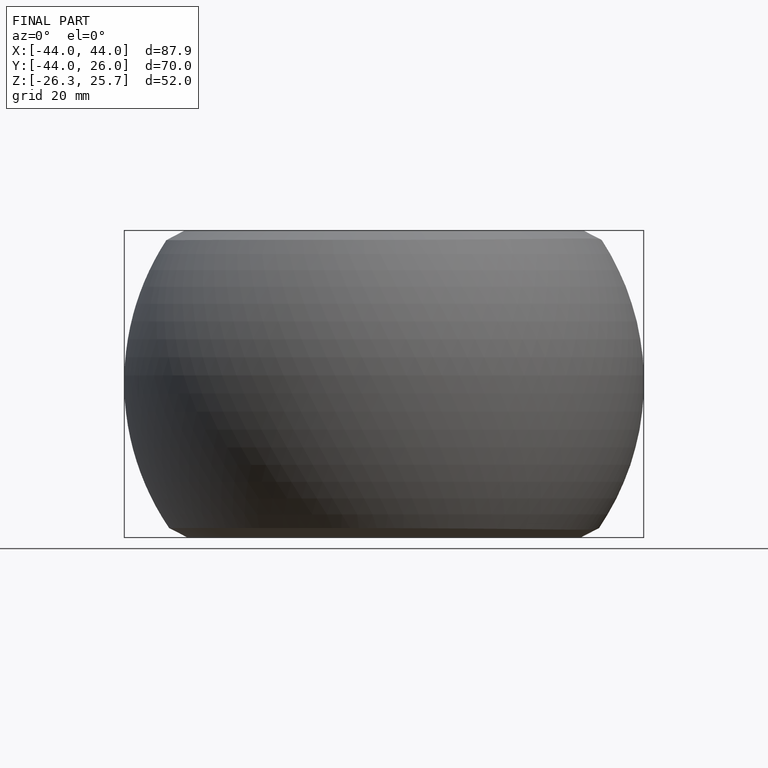
[diagram: finished part — front view with bounding-box wireframe]
